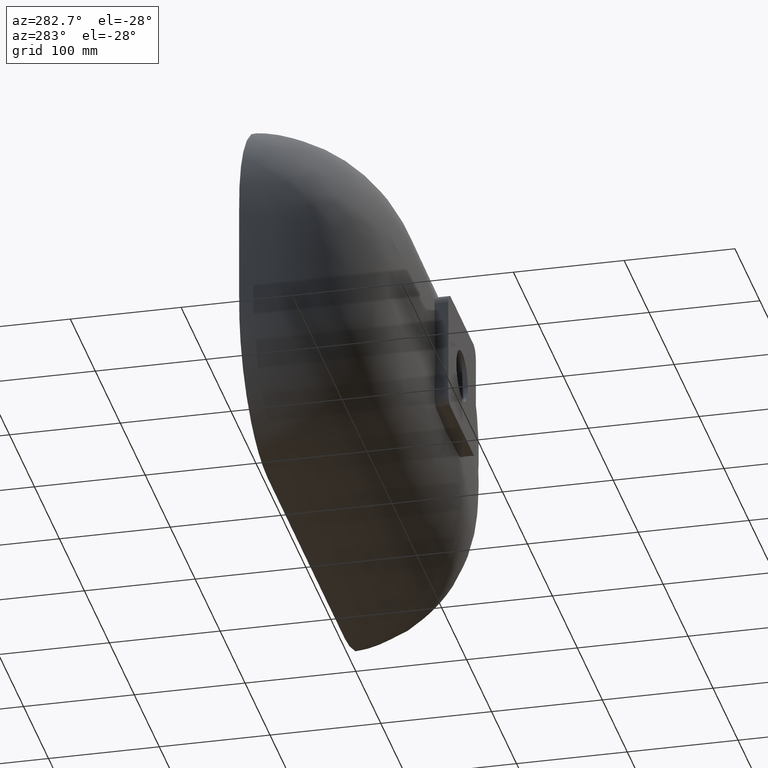
[diagram: clean part render]
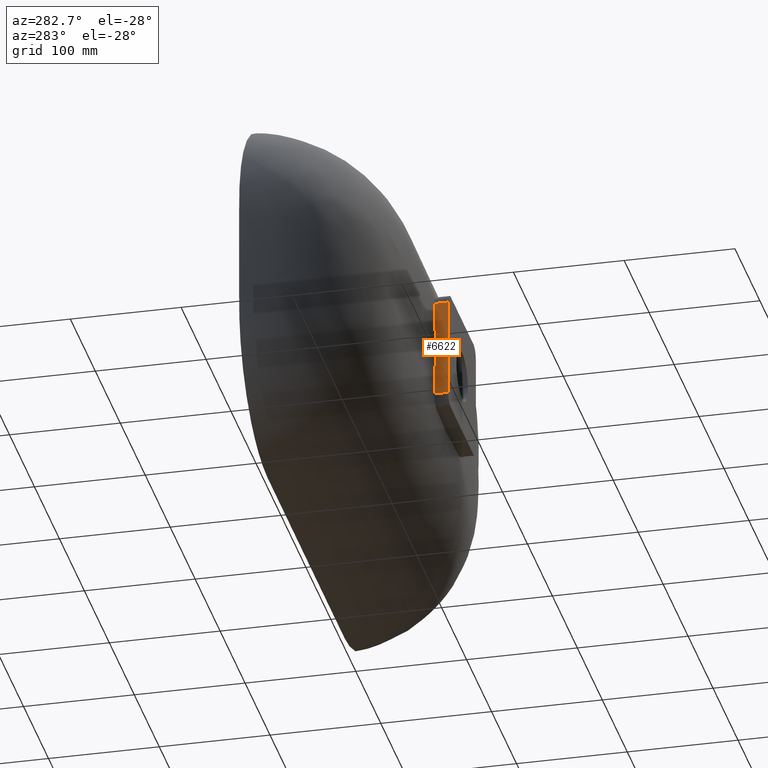
[diagram: same view with one face highlighted and labeled with its STEP entity id]
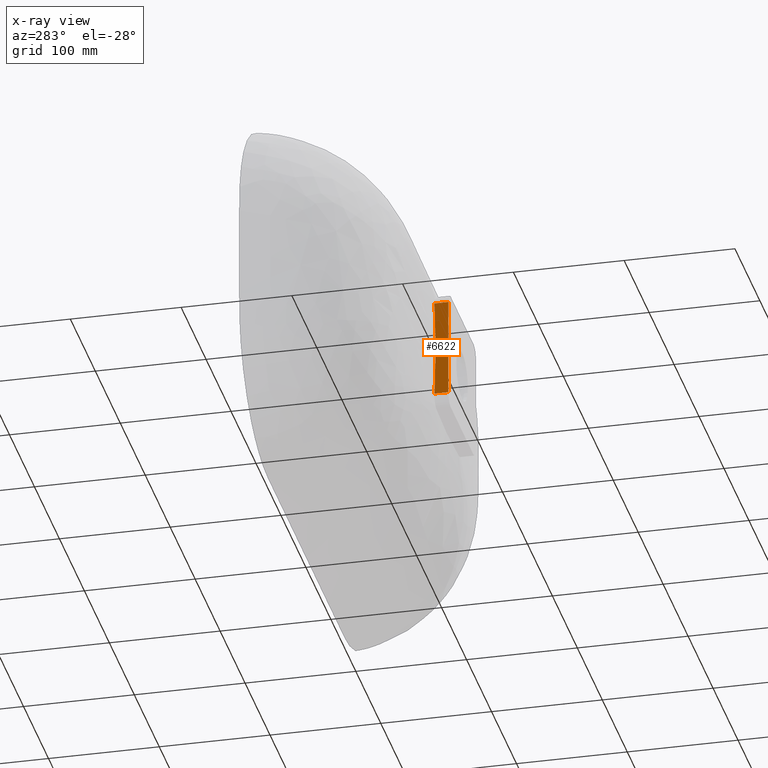
[diagram: x-ray of the same camera — body ghosted, the highlighted face saturated]
A machine part, auxiliary view. The second image highlights one B-rep face of the part: STEP entity #6622.
The next image is the same camera in x-ray: the body ghosted, the highlighted face saturated — about 0% of this face is hidden behind the body in this view.
In plain terms, the highlighted planar face has unit normal (1, 0, 0).
Its self-contained STEP definition (entity closure, byte-faithful):
#190 = VECTOR ( 'NONE', #3013, 1000.000000000000000 ) ;
#609 = CARTESIAN_POINT ( 'NONE',  ( -54.99999999999981526, -141.0000000000015348, -45.00000000000024869 ) ) ;
#1068 = CARTESIAN_POINT ( 'NONE',  ( -54.99999999999982947, -141.0000000000014495, 44.99999999999975131 ) ) ;
#1508 = CARTESIAN_POINT ( 'NONE',  ( -54.99999999999981526, -141.0000000000015348, -45.00000000000024869 ) ) ;
#1560 = CARTESIAN_POINT ( 'NONE',  ( -55.00000000000014211, -129.4170548465035608, 15.00287459582641070 ) ) ;
#1627 = VERTEX_POINT ( 'NONE', #5911 ) ;
#1659 = CARTESIAN_POINT ( 'NONE',  ( -54.99999999999982236, -141.0000000000015348, -45.00000000000024869 ) ) ;
#1988 = ORIENTED_EDGE ( 'NONE', *, *, #5498, .F. ) ;
#2152 = CARTESIAN_POINT ( 'NONE',  ( -55.00000000000017764, -128.4862998606968176, -45.00000000000025580 ) ) ;
#2771 = ORIENTED_EDGE ( 'NONE', *, *, #7374, .F. ) ;
#2838 = VECTOR ( 'NONE', #3475, 1000.000000000000000 ) ;
#3013 = DIRECTION ( 'NONE',  ( 1.541976423090495387E-16, -9.251858538542971828E-16, -1.000000000000000000 ) ) ;
#3292 = EDGE_LOOP ( 'NONE', ( #6678, #1988, #2771, #7055 ) ) ;
#3475 = DIRECTION ( 'NONE',  ( -2.867289048822921029E-14, 1.000000000000000000, -9.100188726435675078E-16 ) ) ;
#3907 = DIRECTION ( 'NONE',  ( 1.000000000000000000, 2.867289048822921029E-14, 1.541976423090230132E-16 ) ) ;
#3960 = CARTESIAN_POINT ( 'NONE',  ( -55.00000000000015632, -129.0322929988768124, 30.00548999474611023 ) ) ;
#4027 = VERTEX_POINT ( 'NONE', #7007 ) ;
#4058 = DIRECTION ( 'NONE',  ( -2.867289048822921029E-14, 1.000000000000000000, -9.100188726435675078E-16 ) ) ;
#4501 = FACE_OUTER_BOUND ( 'NONE', #3292, .T. ) ;
#4555 = CARTESIAN_POINT ( 'NONE',  ( -55.00000000000015632, -129.0322928573589536, -30.00549388111941695 ) ) ;
#4933 = B_SPLINE_CURVE_WITH_KNOTS ( 'NONE', 3,
 ( #2152, #4555, #6963, #1560, #3960, #6373 ),
 .UNSPECIFIED., .F., .F.,
 ( 4, 2, 4 ),
 ( 4.472416374406818573E-13, 0.04501292894825785484, 0.09002585789606847022 ),
 .UNSPECIFIED. ) ;
#5233 = VECTOR ( 'NONE', #4058, 1000.000000000000000 ) ;
#5498 = EDGE_CURVE ( 'NONE', #6389, #7434, #4933, .T. ) ;
#5884 = CARTESIAN_POINT ( 'NONE',  ( -55.00000000000018474, -128.4862998607536611, 44.99999999999974420 ) ) ;
#5911 = CARTESIAN_POINT ( 'NONE',  ( -54.99999999999982947, -141.0000000000014495, 44.99999999999975131 ) ) ;
#6013 = LINE ( 'NONE', #609, #190 ) ;
#6257 = EDGE_CURVE ( 'NONE', #1627, #4027, #6013, .T. ) ;
#6318 = DIRECTION ( 'NONE',  ( -2.867289048822921029E-14, 1.000000000000000000, 0.0000000000000000000 ) ) ;
#6373 = CARTESIAN_POINT ( 'NONE',  ( -55.00000000000018474, -128.4862998607536611, 44.99999999999974420 ) ) ;
#6389 = VERTEX_POINT ( 'NONE', #7270 ) ;
#6470 = LINE ( 'NONE', #1068, #2838 ) ;
#6608 = AXIS2_PLACEMENT_3D ( 'NONE', #1508, #3907, #6318 ) ;
#6622 = ADVANCED_FACE ( 'NONE', ( #4501 ), #6907, .F. ) ;
#6678 = ORIENTED_EDGE ( 'NONE', *, *, #7411, .T. ) ;
#6907 = PLANE ( 'NONE',  #6608 ) ;
#6963 = CARTESIAN_POINT ( 'NONE',  ( -55.00000000000016342, -129.4170560667585050, -15.00280537813201143 ) ) ;
#7007 = CARTESIAN_POINT ( 'NONE',  ( -54.99999999999982236, -141.0000000000015348, -45.00000000000024869 ) ) ;
#7055 = ORIENTED_EDGE ( 'NONE', *, *, #6257, .F. ) ;
#7062 = LINE ( 'NONE', #1659, #5233 ) ;
#7270 = CARTESIAN_POINT ( 'NONE',  ( -55.00000000000017764, -128.4862998606968176, -45.00000000000025580 ) ) ;
#7374 = EDGE_CURVE ( 'NONE', #4027, #6389, #7062, .T. ) ;
#7411 = EDGE_CURVE ( 'NONE', #1627, #7434, #6470, .T. ) ;
#7434 = VERTEX_POINT ( 'NONE', #5884 ) ;